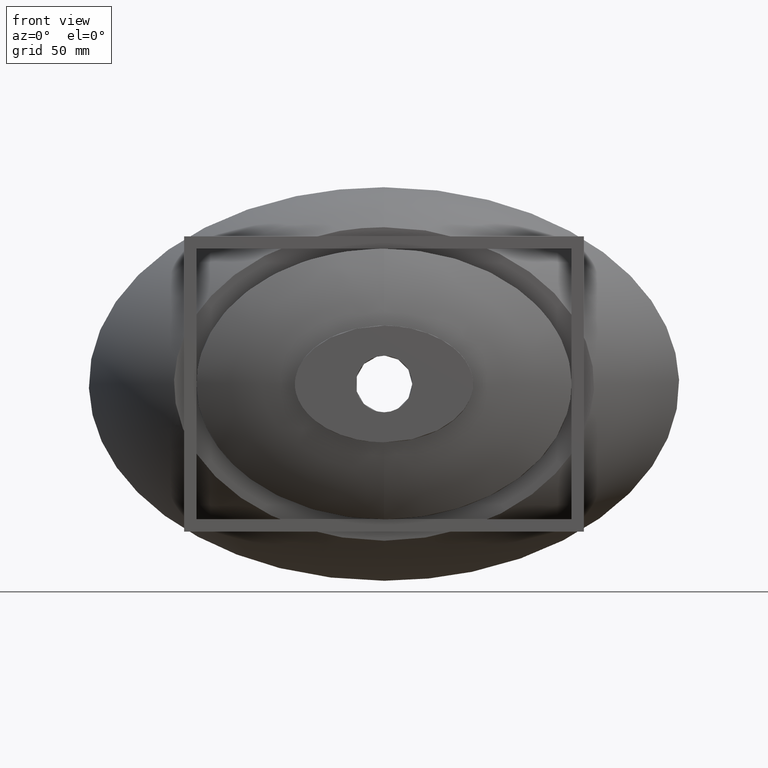
[diagram: clean part render]
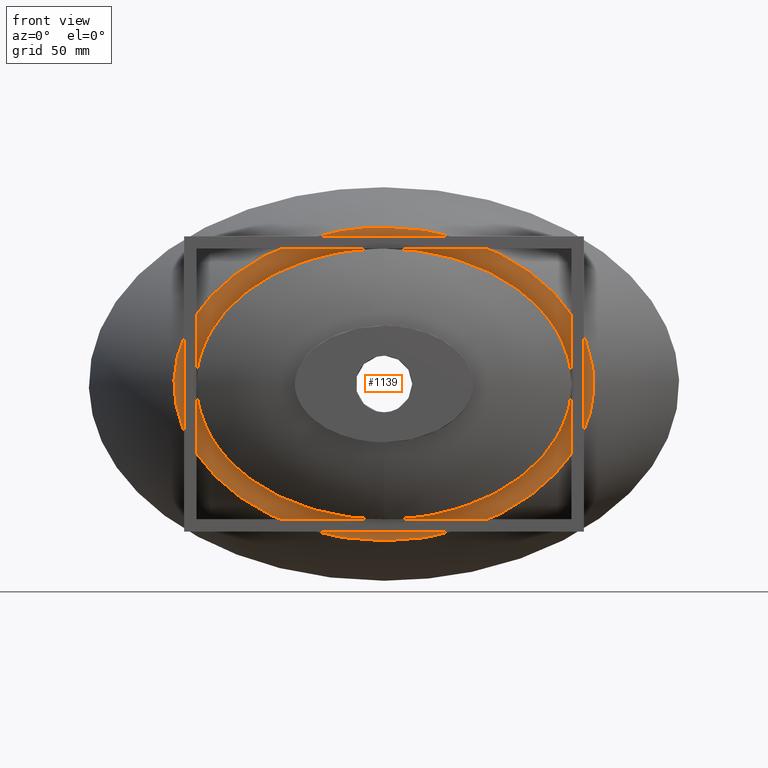
[diagram: same view with one face highlighted and labeled with its STEP entity id]
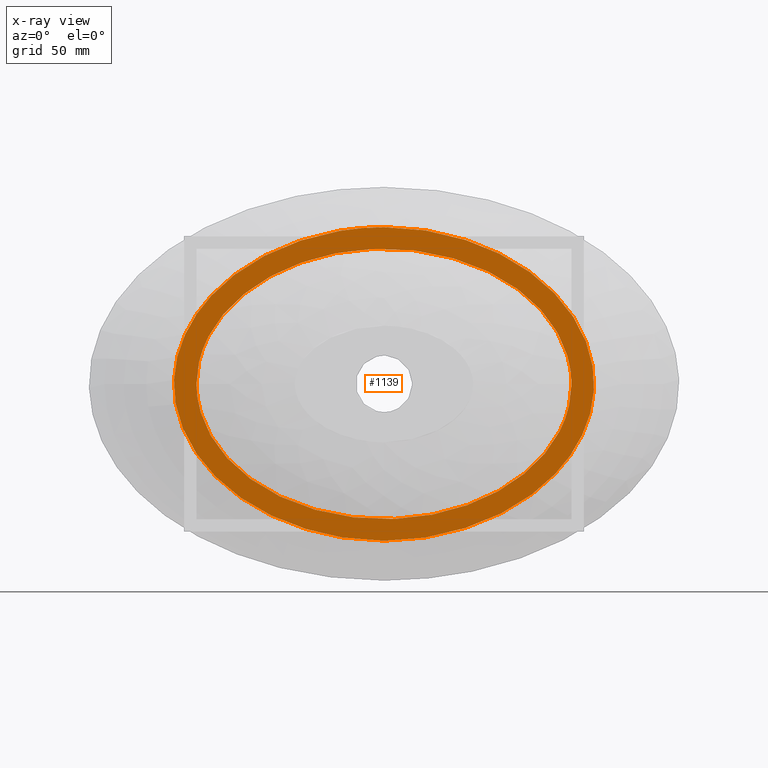
[diagram: x-ray of the same camera — body ghosted, the highlighted face saturated]
A machine part, front view. The second image highlights one B-rep face of the part: STEP entity #1139.
The next image is the same camera in x-ray: the body ghosted, the highlighted face saturated — about 0% of this face is hidden behind the body in this view.
In plain terms, the highlighted planar face has unit normal (0, -1, 0).
Its self-contained STEP definition (entity closure, byte-faithful):
#20 = B_SPLINE_CURVE_WITH_KNOTS ( 'NONE', 3,
 ( #2434, #3958, #3988, #3941, #4004, #4018, #4038, #3045, #4212, #4486, #3547, #3531, #3478, #3768, #3924, #3904, #4054, #3502, #3857, #3840, #3488, #4069, #3561, #3152, #3089, #4314, #188, #3187, #3273, #3320, #2876, #1680, #3289, #1834, #3829, #3322, #1159, #1172, #234, #1193, #1815, #1190, #1083, #1650, #1732, #3074, #1345, #119, #1634, #405, #438, #3580, #1718, #617, #674, #4365, #3596, #839, #2324, #1211, #810, #1938, #1307, #2570, #2068, #1617, #1795, #3820, #1143, #4618, #2554, #1602, #1046, #3448, #648, #667, #2262, #2099, #1162, #1214, #1176, #1402, #1301, #700, #2064, #2621, #1314, #2245, #2590, #3213, #1326, #3014, #3555, #3280, #1686, #3177, #3144, #3587, #3162, #2200, #2456, #735, #846, #4320 ),
 .UNSPECIFIED., .F., .F.,
 ( 4, 2, 2, 2, 2, 2, 2, 2, 2, 2, 2, 2, 2, 2, 2, 2, 2, 2, 2, 2, 2, 2, 2, 2, 2, 2, 2, 2, 2, 2, 2, 2, 2, 2, 2, 2, 2, 2, 2, 2, 2, 2, 2, 2, 2, 2, 2, 2, 2, 2, 2, 4 ),
 ( 0.4677132381552451300, 0.4823002245735060200, 0.4895937177826364900, 0.4932404643872017000, 0.4968872109917669700, 0.5260611838282887000, 0.5406481702465495400, 0.5552351566648103800, 0.5625286498739408000, 0.5661753964785060100, 0.5698221430830712200, 0.5844091295013320600, 0.6135831023378538500, 0.6172298489424190600, 0.6208765955469842700, 0.6281700887561145800, 0.6427570751743754100, 0.6573440615926361400, 0.6609908081972013500, 0.6646375548017665600, 0.6719310480108968700, 0.6865180344291578200, 0.6901647810337230300, 0.6938115276382881300, 0.7011050208474185500, 0.7156920072656793900, 0.7229855004748098100, 0.7266322470793751300, 0.7302789936839403400, 0.7448659801022011800, 0.7521594733113314800, 0.7558062199158966900, 0.7594529665204619000, 0.7740399529387225200, 0.7886269393569833600, 0.7959204325661136700, 0.7995671791706788800, 0.8032139257752439800, 0.8178009121935048100, 0.8323878986117656500, 0.8469748850300264900, 0.8542683782391569100, 0.8579151248437220100, 0.8615618714482872200, 0.8761488578665479500, 0.9053228307030698500, 0.9126163239122001600, 0.9199098171213305800, 0.9272033103304609900, 0.9308500569350262000, 0.9326734302373088600, 0.9344968035395914100 ),
 .UNSPECIFIED. ) ;
#28 = CARTESIAN_POINT ( 'NONE',  ( 170.4311516928544800, -90.00000000000000000, -8.231396301472898400 ) ) ;
#50 = EDGE_CURVE ( 'NONE', #4467, #2989, #2804, .T. ) ;
#58 = CARTESIAN_POINT ( 'NONE',  ( 69.65459210872310800, -89.99999999999998600, 116.0194935529799100 ) ) ;
#117 = FACE_BOUND ( 'NONE', #3576, .T. ) ;
#119 = CARTESIAN_POINT ( 'NONE',  ( -170.6895980445769400, -90.00000000000000000, -5.059402030263545000 ) ) ;
#188 = CARTESIAN_POINT ( 'NONE',  ( -136.0130240512224900, -90.00000000000000000, -76.27978020770024200 ) ) ;
#210 = CARTESIAN_POINT ( 'NONE',  ( 137.9657682918217500, -90.00000000000000000, -74.34408651192229900 ) ) ;
#234 = CARTESIAN_POINT ( 'NONE',  ( -163.1166121747613400, -89.99999999999995700, -37.18656702298409300 ) ) ;
#254 = CARTESIAN_POINT ( 'NONE',  ( 158.2941051680356800, -90.00000000000001400, 47.21764709518615900 ) ) ;
#265 = ORIENTED_EDGE ( 'NONE', *, *, #974, .F. ) ;
#279 = CARTESIAN_POINT ( 'NONE',  ( 156.4517605641494000, -89.99999999999998600, 50.41318149611389300 ) ) ;
#294 = CARTESIAN_POINT ( 'NONE',  ( 162.6835607642088100, -90.00000000000001400, 38.46523999543706700 ) ) ;
#308 = CARTESIAN_POINT ( 'NONE',  ( 159.4485136246134700, -89.99999999999998600, 45.05471664847432600 ) ) ;
#323 = CARTESIAN_POINT ( 'NONE',  ( 166.4402821698804200, -90.00000000000005700, 28.09747349577578700 ) ) ;
#330 = EDGE_LOOP ( 'NONE', ( #1917, #265 ) ) ;
#340 = CARTESIAN_POINT ( 'NONE',  ( 164.5368786691821300, -90.00000000000007100, 33.93838683321766300 ) ) ;
#358 = CARTESIAN_POINT ( 'NONE',  ( -152.4999999999999700, -90.00000000000000000, -219.9999999999999700 ) ) ;
#376 = CARTESIAN_POINT ( 'NONE',  ( 170.7162971340402500, -90.00000000000001400, -4.554447680543992400 ) ) ;
#395 = CARTESIAN_POINT ( 'NONE',  ( 130.6003179424817200, -90.00000000000000000, 81.36028944602564600 ) ) ;
#405 = CARTESIAN_POINT ( 'NONE',  ( -170.8070335549358000, -90.00000000000004300, 4.732717518872007600 ) ) ;
#411 = CARTESIAN_POINT ( 'NONE',  ( 137.7491413572130900, -90.00000000000002800, 74.65313767396286000 ) ) ;
#438 = CARTESIAN_POINT ( 'NONE',  ( -170.4170307752914700, -89.99999999999998600, 9.597623974422804200 ) ) ;
#453 = ORIENTED_EDGE ( 'NONE', *, *, #789, .T. ) ;
#457 = CARTESIAN_POINT ( 'NONE',  ( 132.4219208950856600, -89.99999999999998600, 79.71491311240910700 ) ) ;
#475 = CARTESIAN_POINT ( 'NONE',  ( 150.4240476788266400, -90.00000000000002800, 59.75693906927544000 ) ) ;
#494 = CARTESIAN_POINT ( 'NONE',  ( 147.4554530371719600, -90.00000000000004300, 63.66375024643246400 ) ) ;
#522 = VERTEX_POINT ( 'NONE', #1125 ) ;
#586 = CARTESIAN_POINT ( 'NONE',  ( 127.8008933350517400, -89.99999999999998600, 83.76715077130775500 ) ) ;
#617 = CARTESIAN_POINT ( 'NONE',  ( -167.9157955119559100, -90.00000000000000000, 22.87692445971005400 ) ) ;
#618 = CARTESIAN_POINT ( 'NONE',  ( -4.419585894450774800E-010, -90.00000000000002800, -127.4774822767067700 ) ) ;
#648 = CARTESIAN_POINT ( 'NONE',  ( -124.3691587382684000, -90.00000000000005700, 86.58502596613502100 ) ) ;
#667 = CARTESIAN_POINT ( 'NONE',  ( -119.5382252828343000, -90.00000000000004300, 90.37515109036634400 ) ) ;
#674 = CARTESIAN_POINT ( 'NONE',  ( -167.6037897957378100, -89.99999999999998600, 24.07750521142460800 ) ) ;
#700 = CARTESIAN_POINT ( 'NONE',  ( -77.82034261166093400, -90.00000000000001400, 113.0163227326648200 ) ) ;
#735 = CARTESIAN_POINT ( 'NONE',  ( -1.230491297859555000, -90.00000000000001400, 127.4748237723530300 ) ) ;
#789 = EDGE_CURVE ( 'NONE', #2989, #4467, #4197, .T. ) ;
#795 = CARTESIAN_POINT ( 'NONE',  ( 76.59422534068180300, -89.99999999999995700, -113.7462369705585300 ) ) ;
#810 = CARTESIAN_POINT ( 'NONE',  ( -158.5052243652149000, -90.00000000000001400, 46.83091366814655000 ) ) ;
#827 = CARTESIAN_POINT ( 'NONE',  ( 156.1368096443649700, -89.99999999999998600, -51.13004963807127000 ) ) ;
#839 = CARTESIAN_POINT ( 'NONE',  ( -164.7062869231496900, -90.00000000000002800, 33.49114527343140700 ) ) ;
#846 = CARTESIAN_POINT ( 'NONE',  ( -0.6138336647039470700, -90.00000000262703300, 127.4774822723389300 ) ) ;
#950 = CARTESIAN_POINT ( 'NONE',  ( 94.39343396965814700, -90.00000000000000000, -105.7019176069022300 ) ) ;
#963 = CARTESIAN_POINT ( 'NONE',  ( 100.8985350959533300, -89.99999999999998600, -102.2125545182694600 ) ) ;
#974 = EDGE_CURVE ( 'NONE', #3704, #522, #20, .T. ) ;
#987 = CARTESIAN_POINT ( 'NONE',  ( 89.98995157725185800, -90.00000000000002800, -107.8421076328419900 ) ) ;
#1012 = CARTESIAN_POINT ( 'NONE',  ( 107.2972612407799500, -89.99999999999997200, -98.49692369994133400 ) ) ;
#1030 = CARTESIAN_POINT ( 'NONE',  ( 109.3867127180462000, -90.00000000000000000, -97.20506323372868000 ) ) ;
#1042 = CARTESIAN_POINT ( 'NONE',  ( 161.8316098262854700, -90.00000000000000000, -40.17137812446738800 ) ) ;
#1046 = CARTESIAN_POINT ( 'NONE',  ( -127.2304930601458600, -90.00000000000000000, 84.24711765142610900 ) ) ;
#1056 = CARTESIAN_POINT ( 'NONE',  ( 164.6639650137578600, -89.99999999999998600, -33.34605145002329600 ) ) ;
#1072 = CARTESIAN_POINT ( 'NONE',  ( 67.41750365655461500, -89.99999999999995700, -116.9959688347342400 ) ) ;
#1083 = CARTESIAN_POINT ( 'NONE',  ( -168.7774098270640200, -90.00000000000002800, -19.73720794487916300 ) ) ;
#1125 = CARTESIAN_POINT ( 'NONE',  ( -1.899757937190942100E-013, -90.00000000000000000, 127.4774822767067400 ) ) ;
#1139 = ADVANCED_FACE ( 'NONE', ( #1820, #117 ), #1825, .T. ) ;
#1143 = CARTESIAN_POINT ( 'NONE',  ( -138.0969466953256400, -89.99999999999998600, 74.29834608728434400 ) ) ;
#1159 = CARTESIAN_POINT ( 'NONE',  ( -161.6239357399807900, -89.99999999999995700, -40.57204188935231300 ) ) ;
#1162 = CARTESIAN_POINT ( 'NONE',  ( -103.1894513236569100, -89.99999999999994300, 100.9777802437483700 ) ) ;
#1169 = EDGE_CURVE ( 'NONE', #522, #3704, #1814, .T. ) ;
#1172 = CARTESIAN_POINT ( 'NONE',  ( -162.6330205807424800, -89.99999999999995700, -38.31910321246793000 ) ) ;
#1176 = CARTESIAN_POINT ( 'NONE',  ( -90.22828190347522100, -89.99999999999998600, 107.7301247578835600 ) ) ;
#1184 = CARTESIAN_POINT ( 'NONE',  ( -152.5000000000000000, -90.00000000000000000, 0.0000000000000000000 ) ) ;
#1190 = CARTESIAN_POINT ( 'NONE',  ( -167.6093734457149100, -90.00000000000001400, -24.48926327791288300 ) ) ;
#1193 = CARTESIAN_POINT ( 'NONE',  ( -164.5041320213254900, -90.00000000000000000, -33.77064135979588100 ) ) ;
#1211 = CARTESIAN_POINT ( 'NONE',  ( -159.6545428118979300, -90.00000000000005700, 44.65636271292152800 ) ) ;
#1214 = CARTESIAN_POINT ( 'NONE',  ( -94.61307844952160900, -89.99999999999995700, 105.5897853720496300 ) ) ;
#1301 = CARTESIAN_POINT ( 'NONE',  ( -81.24882072466037600, -90.00000000000001400, 111.6509300686776100 ) ) ;
#1307 = CARTESIAN_POINT ( 'NONE',  ( -156.0361930284946400, -90.00000000000004300, 51.11051068878634100 ) ) ;
#1314 = CARTESIAN_POINT ( 'NONE',  ( -73.21750575405377500, -89.99999999999997200, 114.7516237822031100 ) ) ;
#1326 = CARTESIAN_POINT ( 'NONE',  ( -39.11200635352488300, -90.00000000000004300, 124.1579441820394000 ) ) ;
#1345 = CARTESIAN_POINT ( 'NONE',  ( -170.3825473955700100, -90.00000000000000000, -8.749707017495337500 ) ) ;
#1388 = CARTESIAN_POINT ( 'NONE',  ( 103.0544678219113900, -89.99999999999994300, -101.0000953123723500 ) ) ;
#1402 = CARTESIAN_POINT ( 'NONE',  ( -83.51122440594765800, -90.00000000000000000, 110.7008028698117800 ) ) ;
#1473 = CARTESIAN_POINT ( 'NONE',  ( 124.9457662793537100, -90.00000000000000000, 86.12314433150328300 ) ) ;
#1602 = CARTESIAN_POINT ( 'NONE',  ( -128.1747934358144500, -90.00000000000000000, 83.44992088038911500 ) ) ;
#1617 = CARTESIAN_POINT ( 'NONE',  ( -150.6891609800850600, -89.99999999999998600, 59.38920472037034400 ) ) ;
#1634 = CARTESIAN_POINT ( 'NONE',  ( -170.7939473713948600, -90.00000000000007100, -2.606165781320830100 ) ) ;
#1650 = CARTESIAN_POINT ( 'NONE',  ( -169.7743858317492100, -90.00000000000001400, -13.66304509368692000 ) ) ;
#1680 = CARTESIAN_POINT ( 'NONE',  ( -147.5657116156303600, -90.00000000000007100, -63.52462579506168100 ) ) ;
#1686 = CARTESIAN_POINT ( 'NONE',  ( -17.19728316025937100, -90.00000000000000000, 126.8058148821470300 ) ) ;
#1718 = CARTESIAN_POINT ( 'NONE',  ( -168.7802885638572300, -90.00000000000000000, 19.26795623294335500 ) ) ;
#1732 = CARTESIAN_POINT ( 'NONE',  ( -169.9504989651040000, -89.99999999999998600, -12.44147060150594300 ) ) ;
#1795 = CARTESIAN_POINT ( 'NONE',  ( -147.7455269569353500, -89.99999999999994300, 63.29399648221631500 ) ) ;
#1814 = B_SPLINE_CURVE_WITH_KNOTS ( 'NONE', 3,
 ( #4025, #3995, #3931, #3948, #3892, #3915, #3788, #3714, #3662, #3676, #3635, #3651, #3825, #3814, #58, #3603, #3849, #3120, #3109, #3694, #3802, #3494, #3524, #4381, #1473, #4370, #586, #395, #457, #411, #1941, #494, #475, #4398, #2389, #2845, #279, #254, #308, #294, #340, #323, #3131, #4520, #4558, #4574, #4589, #4606, #4628, #3082, #376, #28, #3964, #3097, #2575, #3539, #2147, #3358, #1056, #4043, #1042, #3458, #827, #2216, #2128, #2049, #2167, #210, #4352, #2025, #2982, #1030, #1012, #1388, #963, #950, #987, #795, #1072, #4335, #3471, #2074, #2114, #1920, #4416, #1860, #2998, #3230, #4273, #4254 ),
 .UNSPECIFIED., .F., .F.,
 ( 4, 2, 2, 2, 2, 2, 2, 2, 2, 2, 2, 2, 2, 2, 2, 2, 2, 2, 2, 2, 2, 2, 2, 2, 2, 2, 2, 2, 2, 2, 2, 2, 2, 2, 2, 2, 2, 2, 2, 2, 2, 2, 2, 2, 4 ),
 ( 0.0000000000000000000, 0.01461603869235157500, 0.02923207738470315000, 0.04384811607705472300, 0.05846415476940630000, 0.06211816444249418400, 0.06577217411558206100, 0.07308019346175780000, 0.08769623215410932100, 0.1023122708464608400, 0.1169283095388123800, 0.1315443482311638700, 0.1351983579042517200, 0.1388523675773395700, 0.1461603869235152100, 0.1607764256158665000, 0.1753924643082178100, 0.1790464739813056300, 0.1827004836543934500, 0.1900085030005691200, 0.2046245416929204600, 0.2082785513660083100, 0.2119325610390961600, 0.2192405803852718600, 0.2338566190776231700, 0.2411646384237989000, 0.2448186480968866900, 0.2484726577699745400, 0.2630886964623259100, 0.2703967158085016100, 0.2777047351546773100, 0.2923207738470286500, 0.3069368125393800400, 0.3142448318855557400, 0.3215528512317313800, 0.3507849286164340700, 0.3580929479626097600, 0.3654009673087854600, 0.3800170060011368000, 0.4092490833858396000, 0.4238651220781909900, 0.4311731414243666900, 0.4384811607705423900, 0.4530971994628937800, 0.4677132381552451300 ),
 .UNSPECIFIED. ) ;
#1815 = CARTESIAN_POINT ( 'NONE',  ( -165.3448401397476700, -90.00000000000001400, -31.46894486898713000 ) ) ;
#1820 = FACE_OUTER_BOUND ( 'NONE', #330, .T. ) ;
#1825 = PLANE ( 'NONE',  #2959 ) ;
#1834 = CARTESIAN_POINT ( 'NONE',  ( -155.9196447239591500, -90.00000000000007100, -51.48799533059305100 ) ) ;
#1839 = CARTESIAN_POINT ( 'NONE',  ( 152.5000000000000000, -90.00000000000000000, 1.347111479062088500E-014 ) ) ;
#1860 = CARTESIAN_POINT ( 'NONE',  ( 24.33390993132695700, -89.99999999999997200, -126.1623314209202800 ) ) ;
#1877 = CARTESIAN_POINT ( 'NONE',  ( 180.7983720720589000, -90.00000000000000000, 1.647987302177966700E-014 ) ) ;
#1917 = ORIENTED_EDGE ( 'NONE', *, *, #1169, .F. ) ;
#1920 = CARTESIAN_POINT ( 'NONE',  ( 34.04386707468042800, -89.99999999999994300, -124.8105695512882800 ) ) ;
#1938 = CARTESIAN_POINT ( 'NONE',  ( -156.6683892253452100, -90.00000000000001400, 50.04523821509194900 ) ) ;
#1941 = CARTESIAN_POINT ( 'NONE',  ( 141.1179320181729500, -90.00000000000008500, 71.11178758032252700 ) ) ;
#2025 = CARTESIAN_POINT ( 'NONE',  ( 127.3727459352117500, -90.00000000000001400, -84.54573433927029700 ) ) ;
#2049 = CARTESIAN_POINT ( 'NONE',  ( 143.0035293188381600, -89.99999999999998600, -68.90828369747757200 ) ) ;
#2064 = CARTESIAN_POINT ( 'NONE',  ( -76.67144730467978800, -90.00000000000004300, 113.4615539488855400 ) ) ;
#2068 = CARTESIAN_POINT ( 'NONE',  ( -154.0774525260643200, -89.99999999999998600, 54.25530907126718500 ) ) ;
#2074 = CARTESIAN_POINT ( 'NONE',  ( 41.32163735656278200, -89.99999999999995700, -123.5359256542981300 ) ) ;
#2099 = CARTESIAN_POINT ( 'NONE',  ( -107.3811041622080200, -90.00000000000001400, 98.50624569838376500 ) ) ;
#2114 = CARTESIAN_POINT ( 'NONE',  ( 38.89468623390836700, -89.99999999999997200, -123.9892038857529300 ) ) ;
#2128 = CARTESIAN_POINT ( 'NONE',  ( 147.7809434345033100, -90.00000000000001400, -63.25219294242409500 ) ) ;
#2147 = CARTESIAN_POINT ( 'NONE',  ( 167.7327472500377900, -90.00000000000004300, -24.03229955516148300 ) ) ;
#2167 = CARTESIAN_POINT ( 'NONE',  ( 141.3495492439844600, -90.00000000000000000, -70.75792276946391700 ) ) ;
#2200 = CARTESIAN_POINT ( 'NONE',  ( -3.075548828110783000, -89.99999999999998600, 127.4562709018591000 ) ) ;
#2216 = CARTESIAN_POINT ( 'NONE',  ( 150.7346086960583000, -90.00000000000001400, -59.32522569045524800 ) ) ;
#2245 = CARTESIAN_POINT ( 'NONE',  ( -67.43951271383274100, -90.00000000000000000, 116.8102287485502700 ) ) ;
#2262 = CARTESIAN_POINT ( 'NONE',  ( -115.5555272636447300, -90.00000000000001400, 93.20499306200297000 ) ) ;
#2324 = CARTESIAN_POINT ( 'NONE',  ( -162.8706039557154400, -90.00000000000005700, 38.03510521670106200 ) ) ;
#2389 = CARTESIAN_POINT ( 'NONE',  ( 154.5175184915517500, -89.99999999999995700, 53.56816546685171000 ) ) ;
#2434 = CARTESIAN_POINT ( 'NONE',  ( -4.419585894450774800E-010, -90.00000000000002800, -127.4774822767067700 ) ) ;
#2456 = CARTESIAN_POINT ( 'NONE',  ( -2.460611884778007000, -90.00000000000002800, 127.4642180856707400 ) ) ;
#2554 = CARTESIAN_POINT ( 'NONE',  ( -130.9696183916380800, -89.99999999999998600, 81.03113113876834500 ) ) ;
#2570 = CARTESIAN_POINT ( 'NONE',  ( -154.7404945688238600, -90.00000000000001400, 53.21583799903955000 ) ) ;
#2575 = CARTESIAN_POINT ( 'NONE',  ( 169.8507938051765500, -89.99999999999997200, -13.14711010107172100 ) ) ;
#2590 = CARTESIAN_POINT ( 'NONE',  ( -62.77632657955636800, -89.99999999999998600, 118.2828715239102200 ) ) ;
#2621 = CARTESIAN_POINT ( 'NONE',  ( -74.37055006502414800, -90.00000000000002800, 114.3289921439112500 ) ) ;
#2717 = ORIENTED_EDGE ( 'NONE', *, *, #50, .T. ) ;
#2804 =( BOUNDED_CURVE ( )  B_SPLINE_CURVE ( 3, ( #1839, #4181, #358, #3493 ),
 .UNSPECIFIED., .F., .F. ) 
 B_SPLINE_CURVE_WITH_KNOTS ( ( 4, 4 ),
 ( 3.141592653589793100, 6.283185307179586200 ),
 .UNSPECIFIED. ) 
 CURVE ( )  GEOMETRIC_REPRESENTATION_ITEM ( )  RATIONAL_B_SPLINE_CURVE ( ( 1.000000000000000000, 0.3333333333333333700, 0.3333333333333333700, 1.000000000000000000 ) ) 
 REPRESENTATION_ITEM ( '' )  );
#2817 = CARTESIAN_POINT ( 'NONE',  ( 152.5000000000000000, -90.00000000000000000, 1.347111479062088500E-014 ) ) ;
#2845 = CARTESIAN_POINT ( 'NONE',  ( 155.8191793641709600, -89.99999999999995700, 51.47021122569489600 ) ) ;
#2876 = CARTESIAN_POINT ( 'NONE',  ( -142.8059325816443600, -90.00000000000002800, -69.13253873064357400 ) ) ;
#2959 = AXIS2_PLACEMENT_3D ( 'NONE', #1877, #4192, #4206 ) ;
#2982 = CARTESIAN_POINT ( 'NONE',  ( 119.6698321239669400, -89.99999999999998600, -90.53882544140859100 ) ) ;
#2989 = VERTEX_POINT ( 'NONE', #1184 ) ;
#2998 = CARTESIAN_POINT ( 'NONE',  ( 19.47365140592236800, -90.00000000000000000, -126.6535341936730400 ) ) ;
#3014 = CARTESIAN_POINT ( 'NONE',  ( -26.97837800480900200, -90.00000000000004300, 125.8077630647013800 ) ) ;
#3045 = CARTESIAN_POINT ( 'NONE',  ( -26.80278118747048000, -90.00000000000008500, -125.8192967034485200 ) ) ;
#3074 = CARTESIAN_POINT ( 'NONE',  ( -170.2547021221888900, -89.99999999999998600, -9.984415289650401700 ) ) ;
#3082 = CARTESIAN_POINT ( 'NONE',  ( 170.8068563909143900, -90.00000000000001400, -2.108736446687335500 ) ) ;
#3089 = CARTESIAN_POINT ( 'NONE',  ( -127.1231083998545000, -90.00000000000000000, -84.75545741856109300 ) ) ;
#3097 = CARTESIAN_POINT ( 'NONE',  ( 170.0212186873357000, -90.00000000000001400, -11.91535024561035200 ) ) ;
#3109 = CARTESIAN_POINT ( 'NONE',  ( 94.26627151204770900, -90.00000000000000000, 105.7632188328186900 ) ) ;
#3120 = CARTESIAN_POINT ( 'NONE',  ( 89.91747191647299100, -89.99999999999997200, 107.8751688126572200 ) ) ;
#3131 = CARTESIAN_POINT ( 'NONE',  ( 166.8002363667276900, -90.00000000000002800, 26.92014510711990000 ) ) ;
#3144 = CARTESIAN_POINT ( 'NONE',  ( -9.835079832638292900, -90.00000000000004300, 127.2664789827096600 ) ) ;
#3152 = CARTESIAN_POINT ( 'NONE',  ( -119.4119673548439100, -90.00000000000004300, -90.72488572168607800 ) ) ;
#3162 = CARTESIAN_POINT ( 'NONE',  ( -4.919991382155445500, -90.00000000000000000, 127.4245343685587000 ) ) ;
#3177 = CARTESIAN_POINT ( 'NONE',  ( -12.29043337606502500, -89.99999999999998600, 127.1404881552079200 ) ) ;
#3187 = CARTESIAN_POINT ( 'NONE',  ( -137.7549126528763000, -89.99999999999998600, -74.53578571725329000 ) ) ;
#3213 = CARTESIAN_POINT ( 'NONE',  ( -48.67038546179665600, -89.99999999999997200, 122.2036726746273300 ) ) ;
#3230 = CARTESIAN_POINT ( 'NONE',  ( 9.743847612547018100, -90.00000000000001400, -127.3111151976997500 ) ) ;
#3273 = CARTESIAN_POINT ( 'NONE',  ( -138.6174059146557300, -89.99999999999998600, -73.64944145753852900 ) ) ;
#3280 = CARTESIAN_POINT ( 'NONE',  ( -19.65119477117306300, -89.99999999999997200, 126.5968679495273500 ) ) ;
#3289 = CARTESIAN_POINT ( 'NONE',  ( -150.5145968192688300, -90.00000000000004300, -59.62807001946318100 ) ) ;
#3320 = CARTESIAN_POINT ( 'NONE',  ( -141.1631680772041500, -90.00000000000002800, -70.96228845062856300 ) ) ;
#3322 = CARTESIAN_POINT ( 'NONE',  ( -161.0973682000621900, -89.99999999999998600, -41.69457218135381300 ) ) ;
#3358 = CARTESIAN_POINT ( 'NONE',  ( 165.4956503016463200, -90.00000000000004300, -31.03729477493071800 ) ) ;
#3448 = CARTESIAN_POINT ( 'NONE',  ( -125.3279838985426300, -90.00000000000000000, 85.81437768059113600 ) ) ;
#3458 = CARTESIAN_POINT ( 'NONE',  ( 158.5858364425512500, -90.00000000000002800, -46.86217260921468900 ) ) ;
#3471 = CARTESIAN_POINT ( 'NONE',  ( 48.54831668396924000, -89.99999999999997200, -122.0578658480114200 ) ) ;
#3478 = CARTESIAN_POINT ( 'NONE',  ( -67.17200599072950200, -89.99999999999998600, -116.8966764810379300 ) ) ;
#3488 = CARTESIAN_POINT ( 'NONE',  ( -97.44706395964286100, -89.99999999999998600, -104.0620968030000700 ) ) ;
#3493 = CARTESIAN_POINT ( 'NONE',  ( -152.5000000000000000, -90.00000000000000000, 0.0000000000000000000 ) ) ;
#3494 = CARTESIAN_POINT ( 'NONE',  ( 115.1374455719606000, -90.00000000000002800, 93.49195578314376600 ) ) ;
#3502 = CARTESIAN_POINT ( 'NONE',  ( -93.06385672463955000, -90.00000000000000000, -106.2960874204485700 ) ) ;
#3524 = CARTESIAN_POINT ( 'NONE',  ( 119.1274546484889100, -89.99999999999998600, 90.67645646307721600 ) ) ;
#3531 = CARTESIAN_POINT ( 'NONE',  ( -62.54833903576651000, -90.00000000000005700, -118.3511028910788500 ) ) ;
#3539 = CARTESIAN_POINT ( 'NONE',  ( 168.8820516187648500, -89.99999999999997200, -19.25790090373182300 ) ) ;
#3547 = CARTESIAN_POINT ( 'NONE',  ( -48.52804832762503700, -90.00000000000000000, -122.2331951099865400 ) ) ;
#3555 = CARTESIAN_POINT ( 'NONE',  ( -24.54228997357617800, -89.99999999999998600, 126.0977356421549000 ) ) ;
#3561 = CARTESIAN_POINT ( 'NONE',  ( -107.1036908801589900, -90.00000000000001400, -98.67521521679954300 ) ) ;
#3576 = EDGE_LOOP ( 'NONE', ( #453, #2717 ) ) ;
#3580 = CARTESIAN_POINT ( 'NONE',  ( -169.2611220290137300, -90.00000000000000000, 16.85534746767215400 ) ) ;
#3587 = CARTESIAN_POINT ( 'NONE',  ( -6.149128784285399400, -90.00000000000001400, 127.3928514815086400 ) ) ;
#3596 = CARTESIAN_POINT ( 'NONE',  ( -166.5833962196945200, -90.00000000000001400, 27.63547129185339200 ) ) ;
#3603 = CARTESIAN_POINT ( 'NONE',  ( 76.54389307518769700, -90.00000000000001400, 113.5694541084514700 ) ) ;
#3627 = CARTESIAN_POINT ( 'NONE',  ( -152.4999999999999700, -90.00000000000000000, 219.9999999999999700 ) ) ;
#3635 = CARTESIAN_POINT ( 'NONE',  ( 60.30292318611427000, -89.99999999999998600, 118.9608336243557700 ) ) ;
#3651 = CARTESIAN_POINT ( 'NONE',  ( 62.65969293028839400, -89.99999999999998600, 118.2624663432436400 ) ) ;
#3662 = CARTESIAN_POINT ( 'NONE',  ( 53.20093006978680000, -90.00000000000004300, 120.9408430707048200 ) ) ;
#3676 = CARTESIAN_POINT ( 'NONE',  ( 59.11955847816135900, -90.00000000000007100, 119.3001072809596500 ) ) ;
#3694 = CARTESIAN_POINT ( 'NONE',  ( 102.7924742055950600, -89.99999999999998600, 101.2032289086528000 ) ) ;
#3704 = VERTEX_POINT ( 'NONE', #618 ) ;
#3711 = CARTESIAN_POINT ( 'NONE',  ( 152.4999999999999700, -90.00000000000000000, 219.9999999999999700 ) ) ;
#3714 = CARTESIAN_POINT ( 'NONE',  ( 48.44170035303243800, -90.00000000000001400, 122.0813387154246800 ) ) ;
#3725 = CARTESIAN_POINT ( 'NONE',  ( 152.5000000000000000, -90.00000000000000000, 1.347111479062088500E-014 ) ) ;
#3768 = CARTESIAN_POINT ( 'NONE',  ( -76.31633654091678000, -90.00000000000001400, -113.6558259996420200 ) ) ;
#3788 = CARTESIAN_POINT ( 'NONE',  ( 38.87686490964208000, -90.00000000000000000, 124.0342587534998800 ) ) ;
#3802 = CARTESIAN_POINT ( 'NONE',  ( 106.9699612640248600, -90.00000000000000000, 98.75535360168645100 ) ) ;
#3814 = CARTESIAN_POINT ( 'NONE',  ( 67.33803131288488000, -90.00000000000000000, 116.7967062259609900 ) ) ;
#3820 = CARTESIAN_POINT ( 'NONE',  ( -141.4493171985739700, -89.99999999999995700, 70.74847805973543300 ) ) ;
#3825 = CARTESIAN_POINT ( 'NONE',  ( 63.83304665928366000, -90.00000000000001400, 117.9034171761063600 ) ) ;
#3829 = CARTESIAN_POINT ( 'NONE',  ( -158.3763192839054200, -90.00000000000002800, -47.24483685583813800 ) ) ;
#3840 = CARTESIAN_POINT ( 'NONE',  ( -96.35398580360968900, -89.99999999999997200, -104.6327639361717100 ) ) ;
#3849 = CARTESIAN_POINT ( 'NONE',  ( 81.05635995129733800, -89.99999999999997200, 111.7784379357365200 ) ) ;
#3857 = CARTESIAN_POINT ( 'NONE',  ( -94.16298266673781800, -89.99999999999995700, -105.7494342482218500 ) ) ;
#3892 = CARTESIAN_POINT ( 'NONE',  ( 24.41496308115410900, -90.00000000000000000, 126.1525959769198800 ) ) ;
#3904 = CARTESIAN_POINT ( 'NONE',  ( -87.53636651035243700, -90.00000000000005700, -108.9266613618700300 ) ) ;
#3915 = CARTESIAN_POINT ( 'NONE',  ( 34.07129376227427300, -90.00000000000004300, 124.8469277660841500 ) ) ;
#3924 = CARTESIAN_POINT ( 'NONE',  ( -80.83701811764424900, -90.00000000000002800, -111.8694598857851900 ) ) ;
#3931 = CARTESIAN_POINT ( 'NONE',  ( 9.816940455409598700, -90.00000000000000000, 127.3079930852516000 ) ) ;
#3941 = CARTESIAN_POINT ( 'NONE',  ( -17.04501060106694900, -90.00000000000001400, -126.8176803880513000 ) ) ;
#3948 = CARTESIAN_POINT ( 'NONE',  ( 19.56419942223873700, -90.00000000000000000, 126.6455659931141300 ) ) ;
#3958 = CARTESIAN_POINT ( 'NONE',  ( -4.864613385156181900, -89.99999999999994300, -127.4774822766958100 ) ) ;
#3964 = CARTESIAN_POINT ( 'NONE',  ( 170.3111983113290600, -90.00000000000001400, -9.458443952907011000 ) ) ;
#3988 = CARTESIAN_POINT ( 'NONE',  ( -9.733964596147657700, -90.00000000000001400, -127.3117662317822300 ) ) ;
#3995 = CARTESIAN_POINT ( 'NONE',  ( 4.920449686713229000, -90.00000000262704700, 127.4774822723390700 ) ) ;
#4004 = CARTESIAN_POINT ( 'NONE',  ( -19.48319824081822900, -90.00000000000001400, -126.6119811315883900 ) ) ;
#4018 = CARTESIAN_POINT ( 'NONE',  ( -23.14224980276273400, -89.99999999999998600, -126.2415189689520800 ) ) ;
#4025 = CARTESIAN_POINT ( 'NONE',  ( -1.899757937190942100E-013, -90.00000000000000000, 127.4774822767067400 ) ) ;
#4038 = CARTESIAN_POINT ( 'NONE',  ( -24.36222883435078000, -90.00000000000004300, -126.1077070860296600 ) ) ;
#4043 = CARTESIAN_POINT ( 'NONE',  ( 162.8323650470381400, -89.99999999999997200, -37.91222371162065500 ) ) ;
#4054 = CARTESIAN_POINT ( 'NONE',  ( -89.75585520710984600, -90.00000000000000000, -107.9018049410094000 ) ) ;
#4069 = CARTESIAN_POINT ( 'NONE',  ( -102.8771748531649700, -90.00000000000000000, -101.1578021761207500 ) ) ;
#4084 = CARTESIAN_POINT ( 'NONE',  ( -152.5000000000000000, -90.00000000000000000, 0.0000000000000000000 ) ) ;
#4181 = CARTESIAN_POINT ( 'NONE',  ( 152.5000000000000300, -90.00000000000000000, -219.9999999999999700 ) ) ;
#4192 = DIRECTION ( 'NONE',  ( 0.0000000000000000000, -1.000000000000000000, 0.0000000000000000000 ) ) ;
#4197 =( BOUNDED_CURVE ( )  B_SPLINE_CURVE ( 3, ( #4084, #3627, #3711, #3725 ),
 .UNSPECIFIED., .F., .T. ) 
 B_SPLINE_CURVE_WITH_KNOTS ( ( 4, 4 ),
 ( 0.0000000000000000000, 3.141592653589793100 ),
 .UNSPECIFIED. ) 
 CURVE ( )  GEOMETRIC_REPRESENTATION_ITEM ( )  RATIONAL_B_SPLINE_CURVE ( ( 1.000000000000000000, 0.3333333333333333700, 0.3333333333333333700, 1.000000000000000000 ) ) 
 REPRESENTATION_ITEM ( '' )  );
#4206 = DIRECTION ( 'NONE',  ( 0.0000000000000000000, -0.0000000000000000000, -1.000000000000000000 ) ) ;
#4212 = CARTESIAN_POINT ( 'NONE',  ( -28.02428348670669000, -89.99999999999998600, -125.6645595924137400 ) ) ;
#4254 = CARTESIAN_POINT ( 'NONE',  ( -4.419585894450774800E-010, -90.00000000000002800, -127.4774822767067700 ) ) ;
#4273 = CARTESIAN_POINT ( 'NONE',  ( 4.874302025732872900, -90.00000000000001400, -127.4774822767177900 ) ) ;
#4314 = CARTESIAN_POINT ( 'NONE',  ( -135.1324333027944200, -89.99999999999998600, -77.13871962208205000 ) ) ;
#4320 = CARTESIAN_POINT ( 'NONE',  ( -1.899757937190942100E-013, -90.00000000000000000, 127.4774822767067400 ) ) ;
#4335 = CARTESIAN_POINT ( 'NONE',  ( 53.30881890804516800, -89.99999999999995700, -120.9128211274516100 ) ) ;
#4352 = CARTESIAN_POINT ( 'NONE',  ( 136.2325510847710200, -89.99999999999998600, -76.08506608413476600 ) ) ;
#4365 = CARTESIAN_POINT ( 'NONE',  ( -166.9378784470327200, -89.99999999999995700, 26.45552297163128900 ) ) ;
#4370 = CARTESIAN_POINT ( 'NONE',  ( 126.8565727261413700, -90.00000000000001400, 84.55922909211373900 ) ) ;
#4381 = CARTESIAN_POINT ( 'NONE',  ( 123.9806885780412800, -89.99999999999998600, 86.89377884622058400 ) ) ;
#4398 = CARTESIAN_POINT ( 'NONE',  ( 153.8472461822833800, -90.00000000000002800, 54.61083769417971500 ) ) ;
#4416 = CARTESIAN_POINT ( 'NONE',  ( 31.61725946939710500, -89.99999999999998600, -125.1793487632805400 ) ) ;
#4467 = VERTEX_POINT ( 'NONE', #2817 ) ;
#4486 = CARTESIAN_POINT ( 'NONE',  ( -38.98311596304942100, -89.99999999999995700, -124.1828365877880700 ) ) ;
#4520 = CARTESIAN_POINT ( 'NONE',  ( 167.4774722378941200, -90.00000000000001400, 24.54665876714359000 ) ) ;
#4558 = CARTESIAN_POINT ( 'NONE',  ( 167.7951704725055600, -89.99999999999998600, 23.34878145554419100 ) ) ;
#4574 = CARTESIAN_POINT ( 'NONE',  ( 168.6792845916251600, -89.99999999999998600, 19.73747271771135200 ) ) ;
#4589 = CARTESIAN_POINT ( 'NONE',  ( 169.1726496957653900, -89.99999999999998600, 17.32454182458921100 ) ) ;
#4606 = CARTESIAN_POINT ( 'NONE',  ( 170.3656938159302600, -90.00000000000001400, 10.06963466787167300 ) ) ;
#4618 = CARTESIAN_POINT ( 'NONE',  ( -132.7867921093800000, -89.99999999999997200, 79.37862356678182600 ) ) ;
#4628 = CARTESIAN_POINT ( 'NONE',  ( 170.7798060614053700, -90.00000000000001400, 5.211627259377883600 ) ) ;